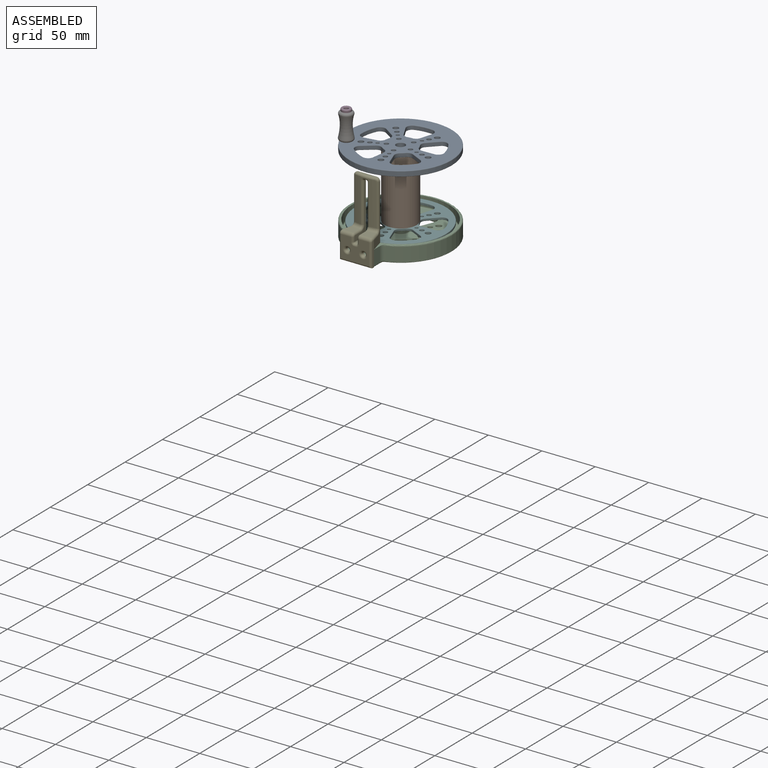
[diagram: assembled view]
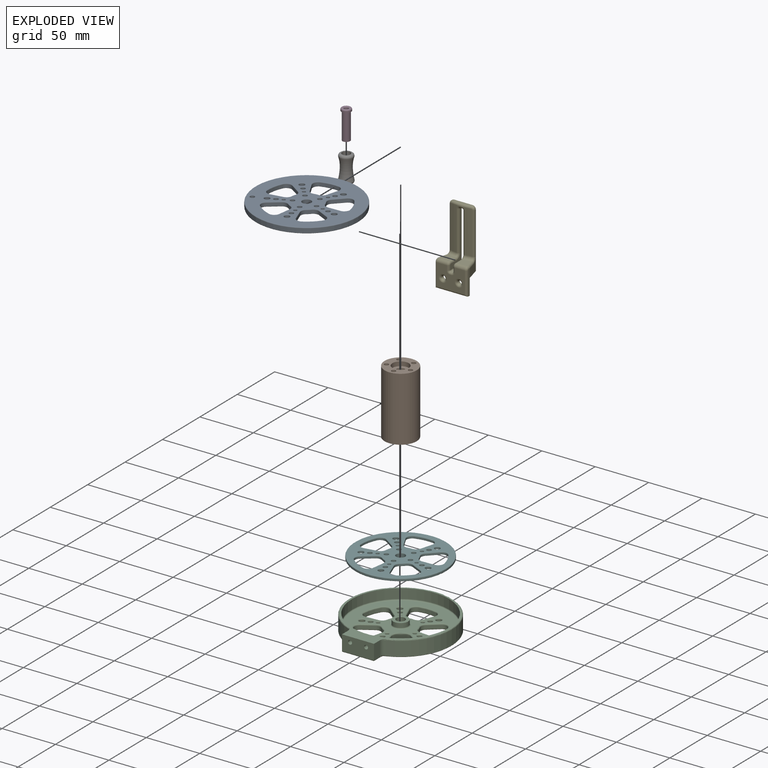
[diagram: exploded view]
GUIDED TOUR — MATED ASSEMBLY (Onshape document 5b718e8cfdb5f7d0afb33d48, AutoMate assembly 5b718e8cfdb5f7d0afb33d48_10eff221aa54d58e2a21d14b_0b6ef1a40faf42d0a8aaf2a6_default)

This assembly has 7 components, labeled P0..P6 below (a component is one placed occurrence of a part; the same part can appear more than once), held together by 14 mates. A mate is a constraint between two components; its type names the relative motion it leaves free:
  CYLINDRICAL — leaves both rotation about and translation along the listed axis free,
  PLANAR — leaves sliding in the plane through the listed point (normal = the listed direction) and rotation about that normal free.
Axis/direction vectors are unit vectors and 'through' points are millimeter coordinates, both in the assembly's world frame.

MATES
  1. PLANAR "Planar 2": P1 <-> P0, direction (0.000, 0.000, 1.000) through (-47.73, -34.65, 64.87) mm
  2. CYLINDRICAL "Cylindrical 8": P3 <-> P0, axis (0.000, 0.000, -1.000) through (-86.60, -51.82, 68.87) mm
  3. PLANAR "Planar 5": P0 <-> P3, direction (0.000, 0.000, 1.000) through (-47.60, -34.60, 68.87) mm
  4. PLANAR "Planar 3": P2 <-> P5, direction (0.000, 0.000, 1.000) through (-47.73, -34.65, 0.87) mm
  5. CYLINDRICAL "Cylindrical 6": P2 <-> P4, axis (0.000, -1.000, 0.000) through (-40.23, -91.65, 1.02) mm
  6. CYLINDRICAL "Cylindrical 9": P3 <-> P6, axis (0.000, 0.000, -1.000) through (-86.60, -51.82, 81.37) mm
  7. PLANAR "Planar 4": P2 <-> P4, direction (0.000, -1.000, 0.000) through (-47.73, -91.65, -1.25) mm
  8. PLANAR "Planar 6": P6 <-> P0, direction (0.000, 0.000, -1.000) through (-86.60, -51.82, 68.87) mm
  9. CYLINDRICAL "Cylindrical 3": P1 <-> P0, axis (0.000, 0.000, 1.000) through (-36.88, -36.99, 64.87) mm
  10. CYLINDRICAL "Cylindrical 4": P1 <-> P0, axis (0.000, 0.000, 1.000) through (-55.13, -26.38, 64.87) mm
  11. CYLINDRICAL "Cylindrical 1": P1 <-> P5, axis (0.000, 0.000, 1.000) through (-57.88, -39.14, 64.87) mm
  12. PLANAR "Planar 1": P5 <-> P1, direction (0.000, 0.000, 1.000) through (-56.59, -46.13, 4.87) mm
  13. CYLINDRICAL "Cylindrical 2": P5 <-> P1, axis (0.000, 0.000, -1.000) through (-36.88, -36.99, 2.97) mm
  14. CYLINDRICAL "Cylindrical 7": P4 <-> P2, axis (0.000, -1.000, 0.000) through (-55.23, -93.65, 1.02) mm

ASSEMBLY ORDER
  1. P3 — the base component [order verified]
  2. P6 [order verified]
  3. P5 [order verified]
  4. P2 [order verified]
  5. P1 [order verified]
  6. P4 [order verified]
  7. P0 [order verified]
(P2 verified with a relaxed clearance tolerance: the source model stores slight part interference there.)
Order-tag legend:
  [order verified] — this step's position reverses a verified removal order: the component was checked to insert without passing through the ones already placed.

Of the 7 components, 1 carries the full construction recipe — the FeatureScript program that regenerates the part's solid from scratch; the rest are supplied as boundary geometry only.
Each toured component is shown spotlighted twice — in the assembled view, then in the exploded view, where a leader line traces a displaced component back to its assembled socket (saturated green if recipe-attached, orange if geometry-only; every other component desaturated gray) — followed by its recipe or geometry summary and the mates that hold it.
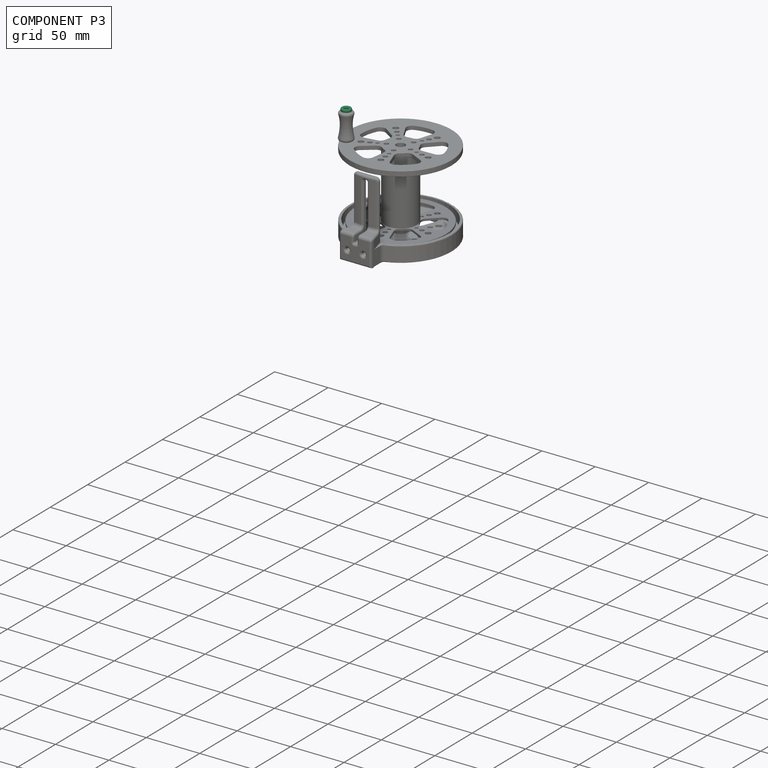
[diagram: component P3 — assembled]
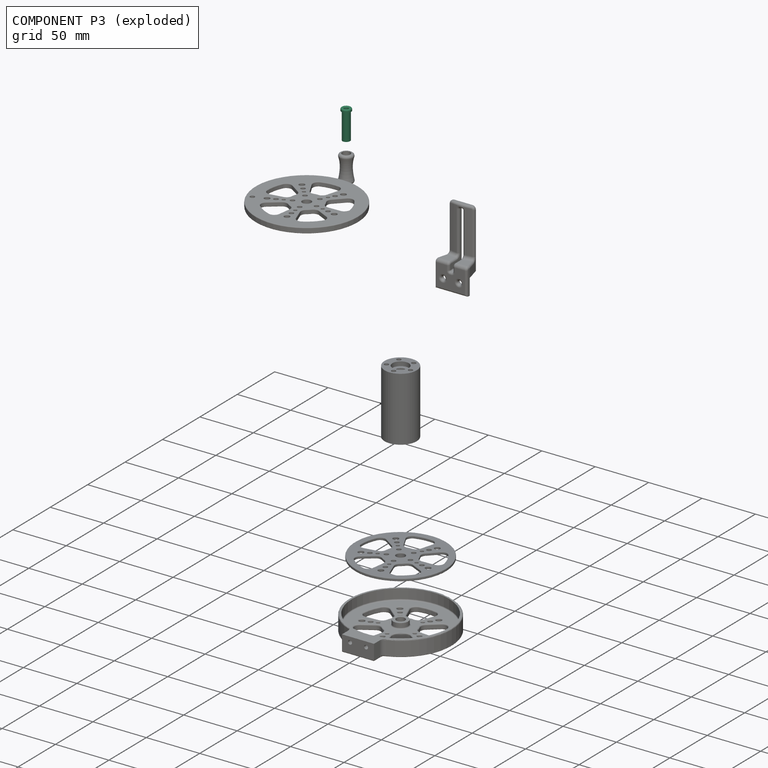
[diagram: component P3 — exploded]
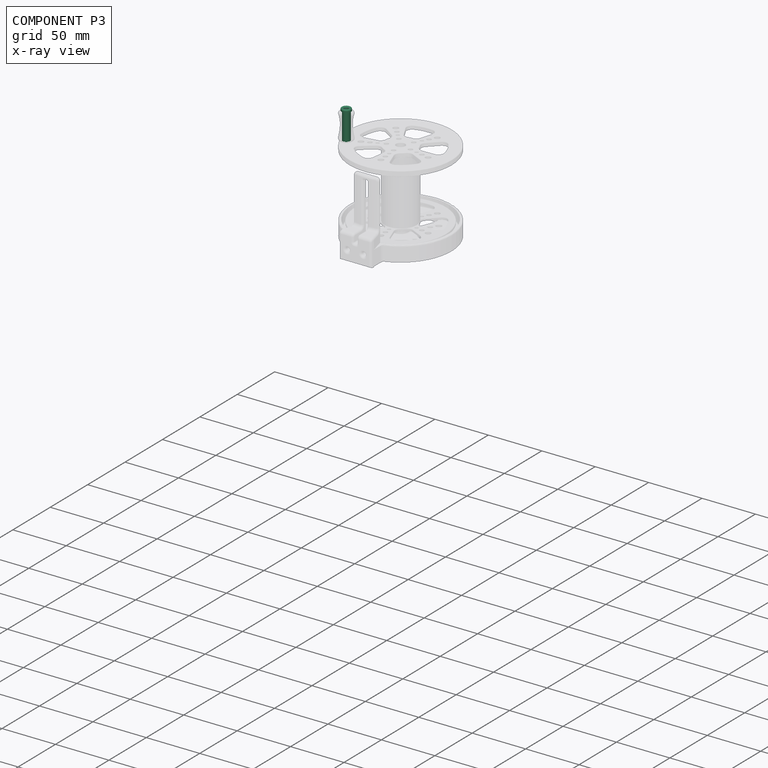
[diagram: component P3 — x-ray view]
COMPONENT P3 — recipe-attached (CADFS 00964111, mesh-verified: the recipe's output STEP matches this component's geometry to below the mesh-comparison resolution (tessellation chordal tolerance ~0.0453 mm)).
Held by: CYLINDRICAL mate "Cylindrical 8" to P0; PLANAR mate "Planar 5" to P0; CYLINDRICAL mate "Cylindrical 9" to P6.
Construction recipe (FeatureScript — the CAD program that rebuilds this solid; sketch coordinates are in the units given by the * unit suffixes, e.g. mm):

FeatureScript 1511;
import(path : "onshape/std/geometry.fs", version : "1511.0");
import(path : "onshape/std/common.fs", version : "1511.0");
const mm = millimeter;
const VERTEX = EntityType.VERTEX;
const EDGE = EntityType.EDGE;
const FACE = EntityType.FACE;
const BODY = EntityType.BODY;
function v(x, y){return vector(x, y);}
function OD(order){return orderDisambiguation(order);}
function OSD(set){return originalSetDisambiguation(set);}
function TD(topology){return topologyDisambiguation(topology);}
function TDD(query){return trueDependencyDisambiguation(query);}
function sQuery(a, b, c) {return sketchEntityQuery(a, b, c);}

annotation { "Feature Type Name" : "Feature", "Feature Type Description" : "" }
export const myFeature = defineFeature(function(context is Context, id is Id, definition is map)
    precondition{}
    {
        {
            var Q0;
            Q0=qCreatedBy(makeId("Top.planeOp"),FACE);
            var sketch = newSketch(context, id + "F0", { "sketchPlane" : qUnion([Q0])});
            skLineSegment(sketch, "E0", {"start": v(2, 0) * mm, "end": v(2, 27.4) * mm});
            skLineSegment(sketch, "E1", {"start": v(2, 27.4) * mm, "end": v(4.5, 27.4) * mm});
            skLineSegment(sketch, "E2", {"start": v(4.5, 27.4) * mm, "end": v(4.5, 25) * mm});
            skLineSegment(sketch, "E3", {"start": v(4.5, 25) * mm, "end": v(3.5, 25) * mm});
            skLineSegment(sketch, "E4", {"start": v(3.5, 25) * mm, "end": v(3.5, 0) * mm});
            skLineSegment(sketch, "E5", {"start": v(3.5, 0) * mm, "end": v(2, 0) * mm});
            skLineSegment(sketch, "E6", {"start": v(0, 0) * mm, "end": v(0, 28) * mm, "construction": true});
            skSolve(sketch);
        }
        {
            var Q0;
            Q0=makeQuery(id+"F0.imprint","IMPRINT",FACE,{"disambiguationData":[TD([[makeQuery(id+"F0.imprint","IMPRINT",EDGE,{"derivedFrom":sQuery(id+"F0.wireOp",EDGE,"E0")}),-1.0]])]});
            var Q1;
            Q1=sQuery(id+"F0.wireOp",EDGE,"E6");
            revolve(context, id + "F1", {"surfaceOperationType" : NewSurfaceOperationType.NEW, "entities" : qUnion([Q0]), "axis" : qUnion([Q1]), "revolveType" : RevolveType.FULL});
        }
        {
            var Q0;
            Q0=makeQuery(id+"F1.opRevolve","SWEPT_FACE",FACE,{"disambiguationData":[OSD([sQuery(id+"F0.wireOp",EDGE,"E1")])]});
            fillet(context, id + "F2", {"entities" : qUnion([Q0]), "radius" : 1 * mm, "allowEdgeOverflow" : false});
        }
    });
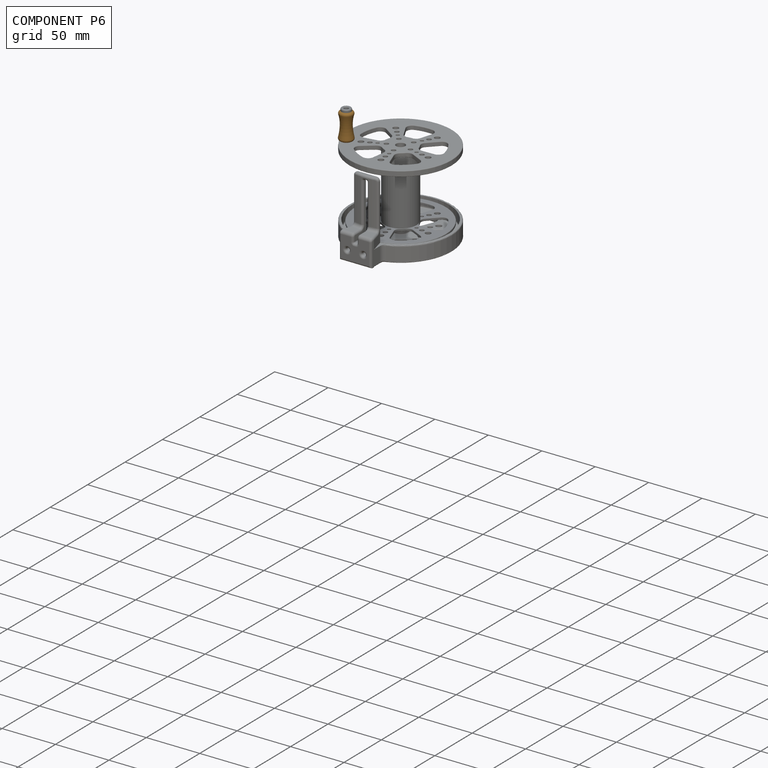
[diagram: component P6 — assembled]
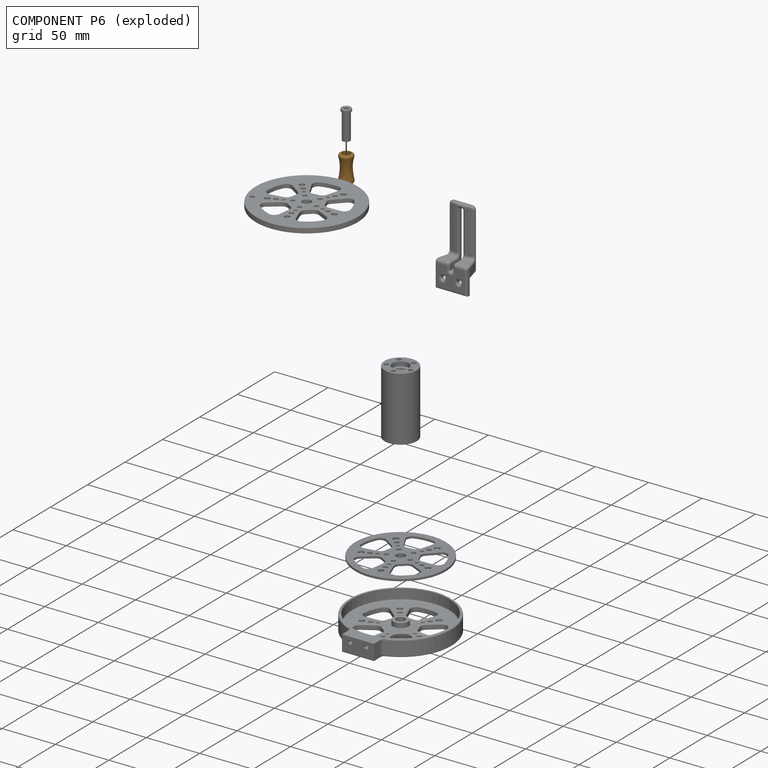
[diagram: component P6 — exploded]
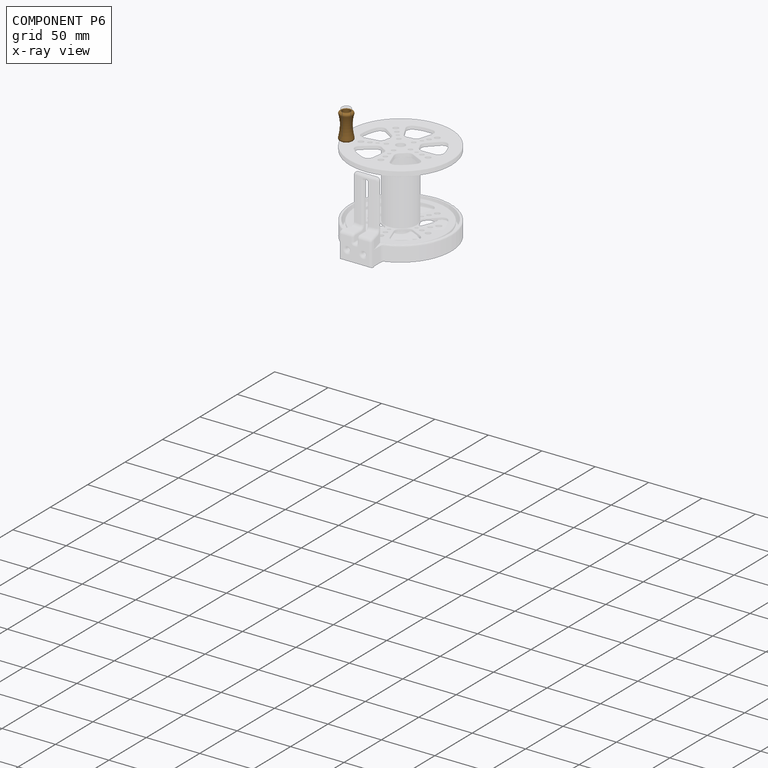
[diagram: component P6 — x-ray view]
COMPONENT P6 — geometry summary (no construction recipe available for this part):
  bounding box: 24.8 x 13.9 x 13.9 mm
  B-rep topology: 1 solid, 6 faces, 22 edges
  volume: 1254 mm^3 (26% of its bounding box)
  symmetry: revolution-symmetric about the y axis through its bounding-box center; mirror-symmetric across its x mid-plane, z mid-plane
Held by: CYLINDRICAL mate "Cylindrical 9" to P3; PLANAR mate "Planar 6" to P0.
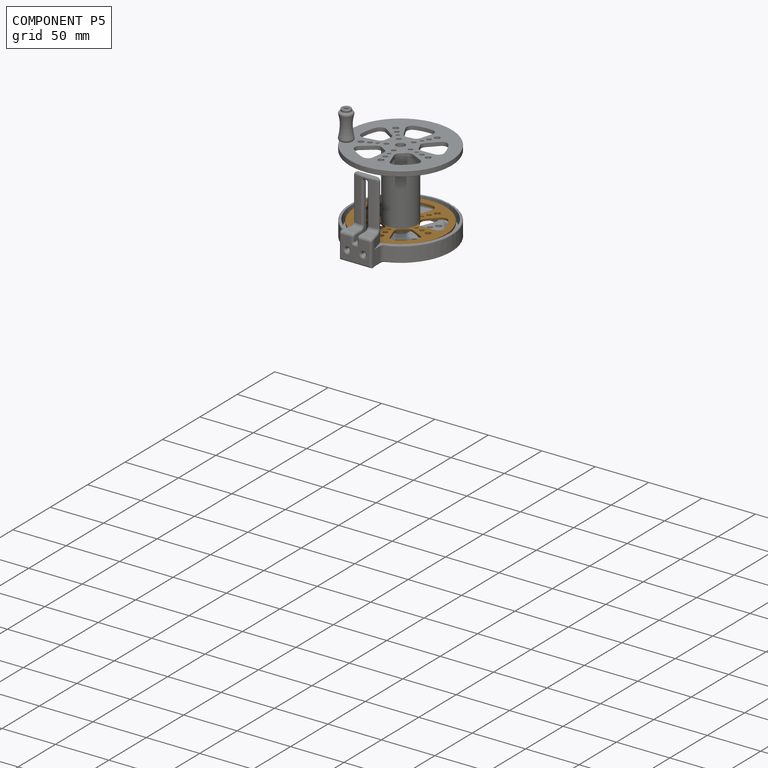
[diagram: component P5 — assembled]
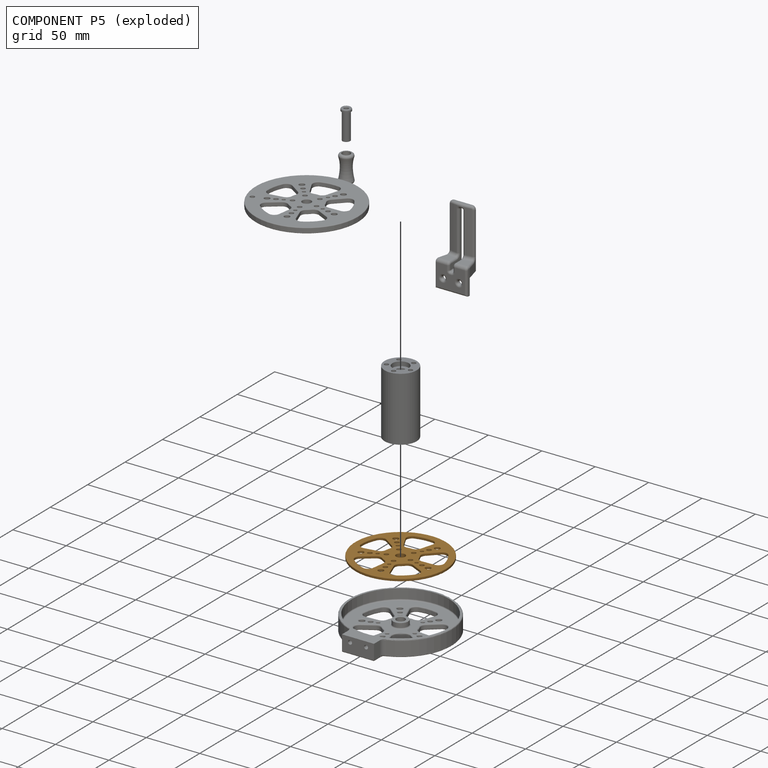
[diagram: component P5 — exploded]
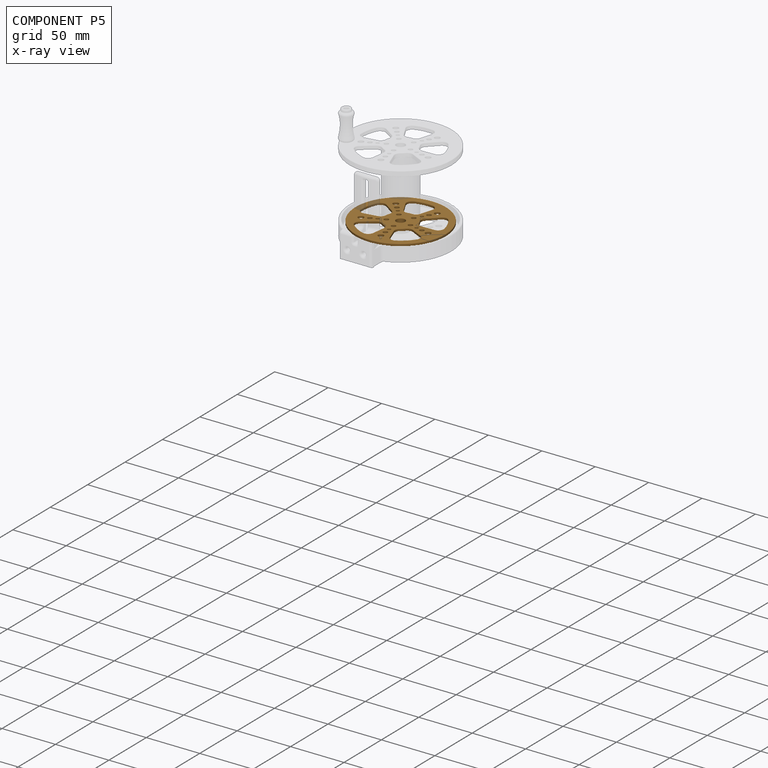
[diagram: component P5 — x-ray view]
COMPONENT P5 — geometry summary (no construction recipe available for this part):
  bounding box: 92.0 x 92.0 x 4.0 mm
  B-rep topology: 1 solid, 190 faces, 874 edges
  volume: 8081 mm^3 (24% of its bounding box)
  symmetry: mirror-symmetric across its x mid-plane
Held by: PLANAR mate "Planar 3" to P2; CYLINDRICAL mate "Cylindrical 1" to P1; PLANAR mate "Planar 1" to P1; CYLINDRICAL mate "Cylindrical 2" to P1.
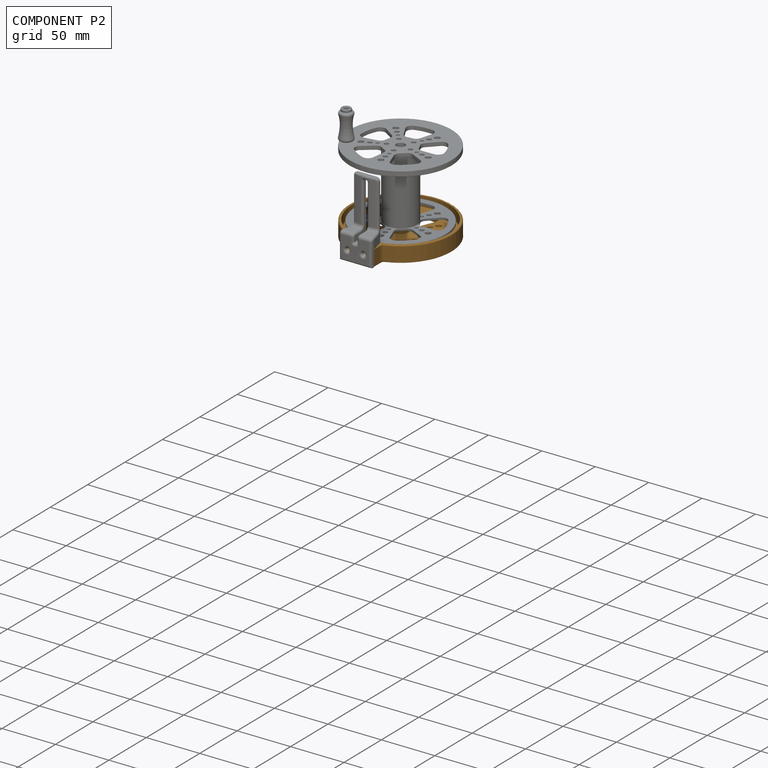
[diagram: component P2 — assembled]
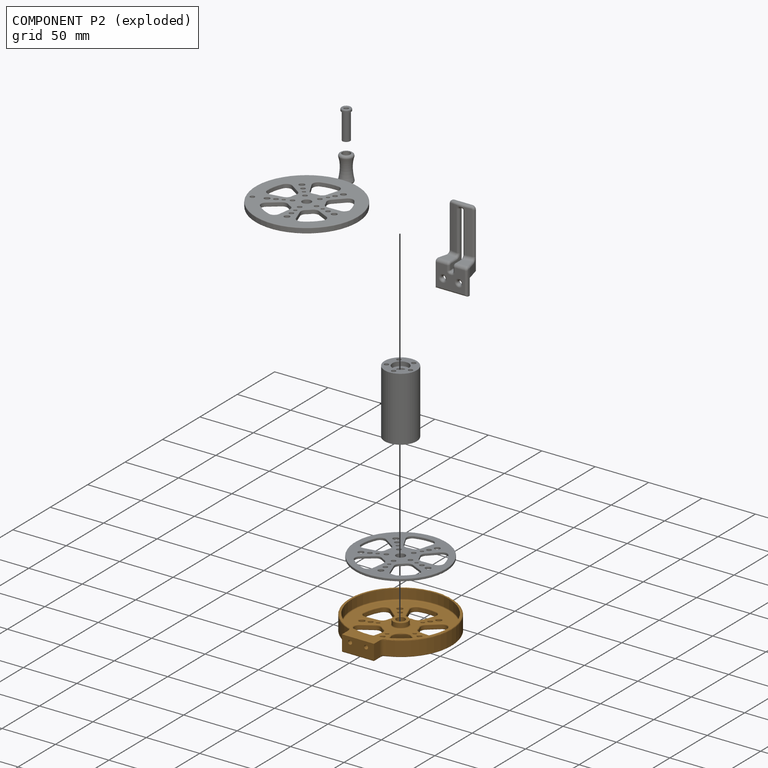
[diagram: component P2 — exploded]
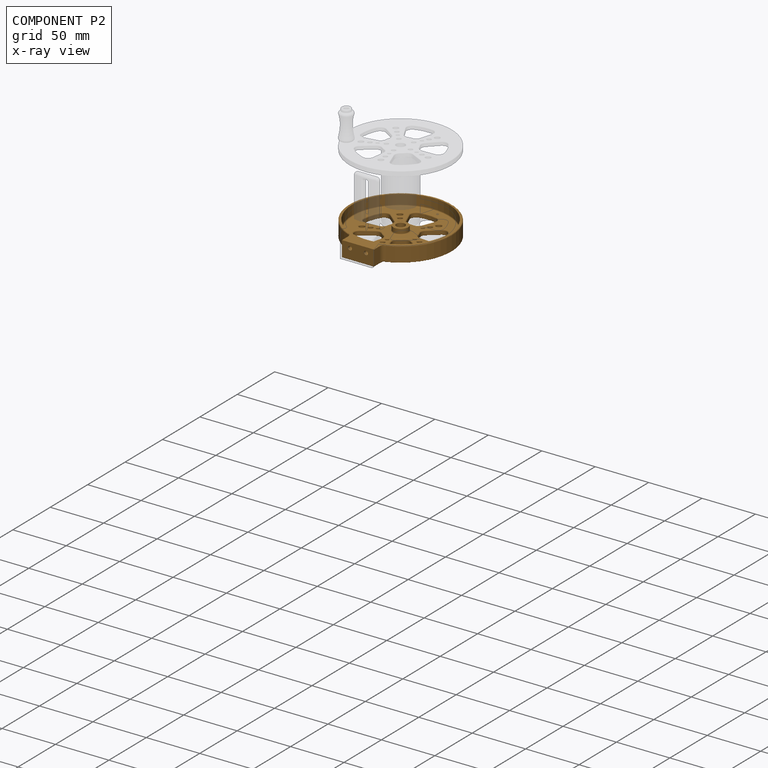
[diagram: component P2 — x-ray view]
COMPONENT P2 — geometry summary (no construction recipe available for this part):
  bounding box: 108.8 x 103.7 x 20.0 mm
  B-rep topology: 1 solid, 196 faces, 912 edges
  volume: 36302 mm^3 (16% of its bounding box)
  symmetry: mirror-symmetric across its x mid-plane
Held by: PLANAR mate "Planar 3" to P5; CYLINDRICAL mate "Cylindrical 6" to P4; PLANAR mate "Planar 4" to P4; CYLINDRICAL mate "Cylindrical 7" to P4.
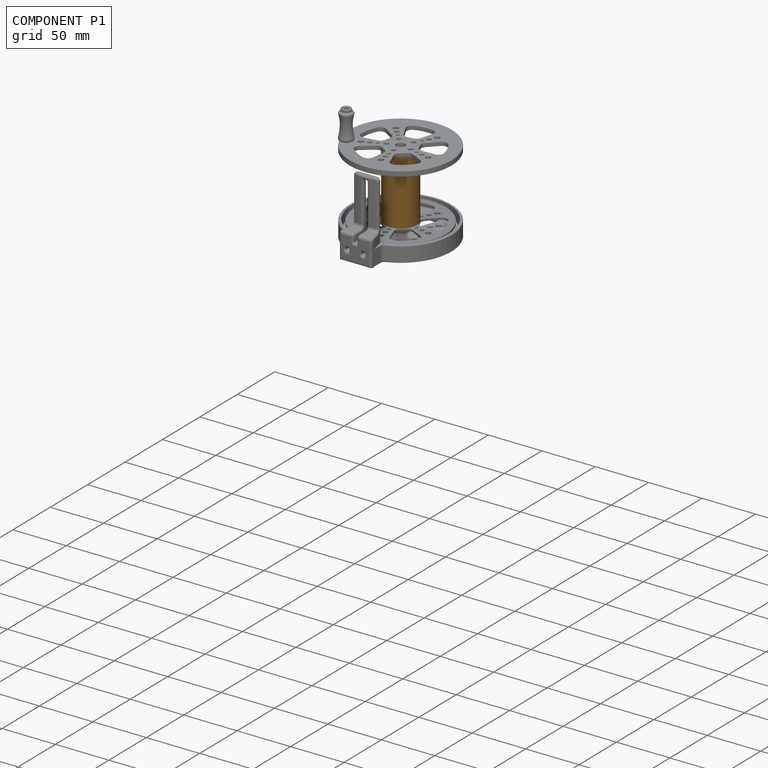
[diagram: component P1 — assembled]
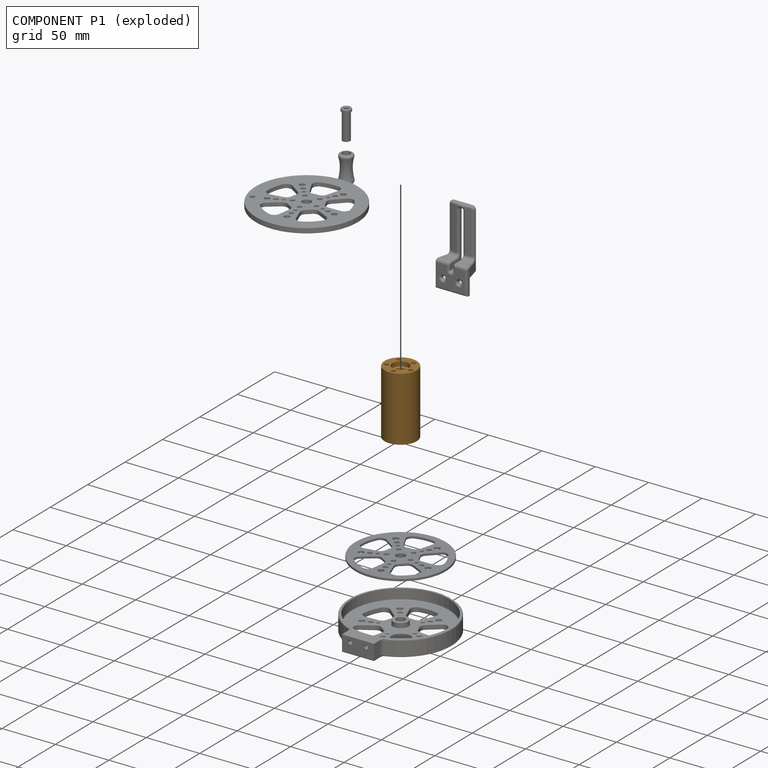
[diagram: component P1 — exploded]
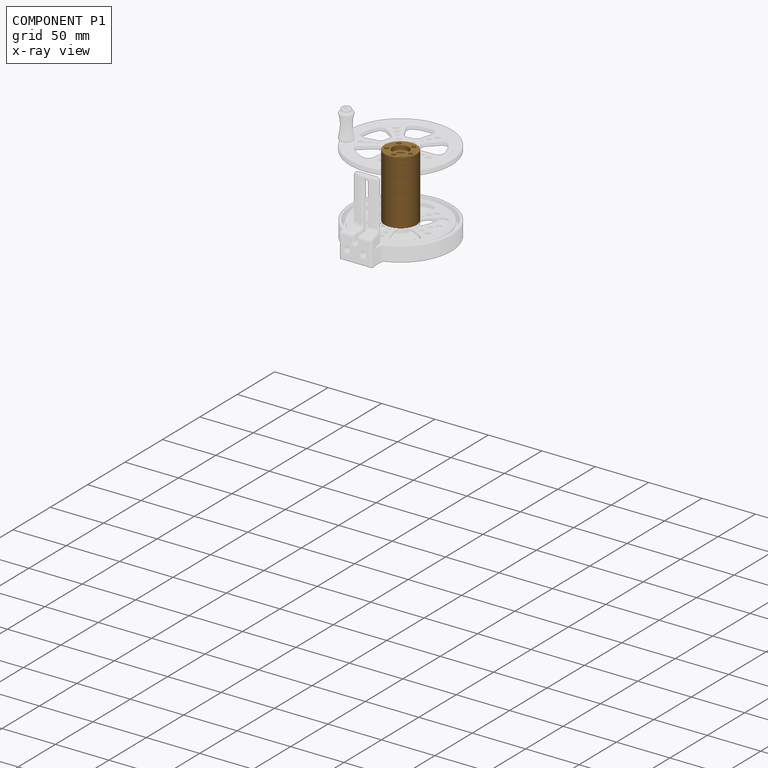
[diagram: component P1 — x-ray view]
COMPONENT P1 — geometry summary (no construction recipe available for this part):
  bounding box: 60.0 x 30.0 x 30.0 mm
  B-rep topology: 1 solid, 13 faces, 54 edges
  volume: 34425 mm^3 (64% of its bounding box)
  symmetry: 2-fold rotationally symmetric about the y axis; mirror-symmetric across its x mid-plane, z mid-plane
Held by: PLANAR mate "Planar 2" to P0; CYLINDRICAL mate "Cylindrical 3" to P0; CYLINDRICAL mate "Cylindrical 4" to P0; CYLINDRICAL mate "Cylindrical 1" to P5; PLANAR mate "Planar 1" to P5; CYLINDRICAL mate "Cylindrical 2" to P5.
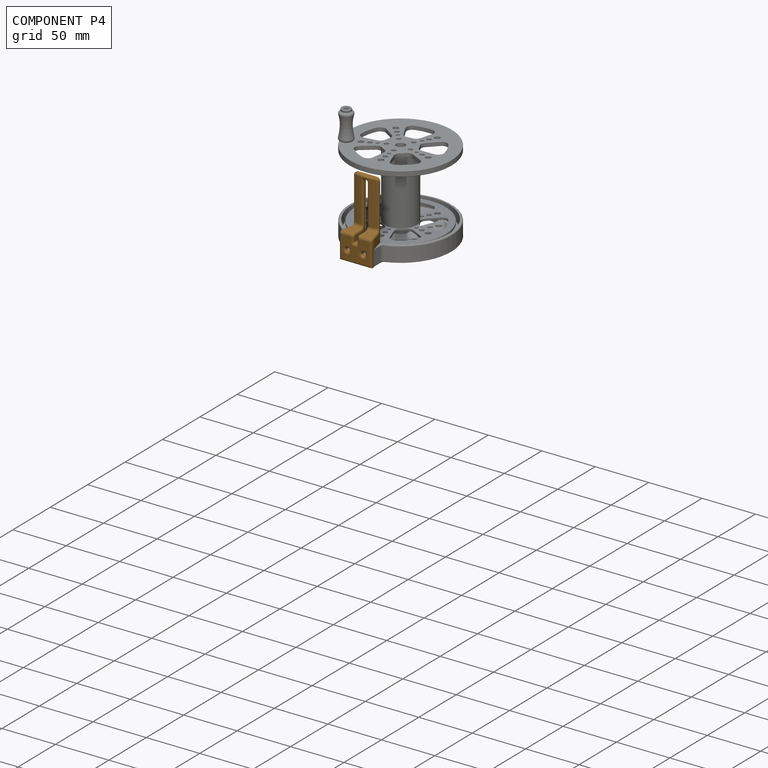
[diagram: component P4 — assembled]
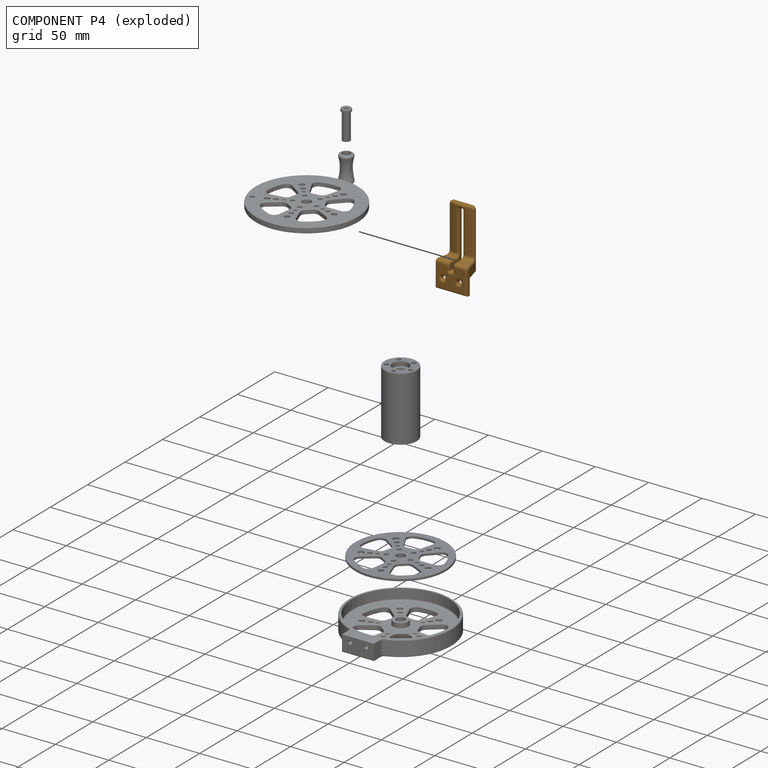
[diagram: component P4 — exploded]
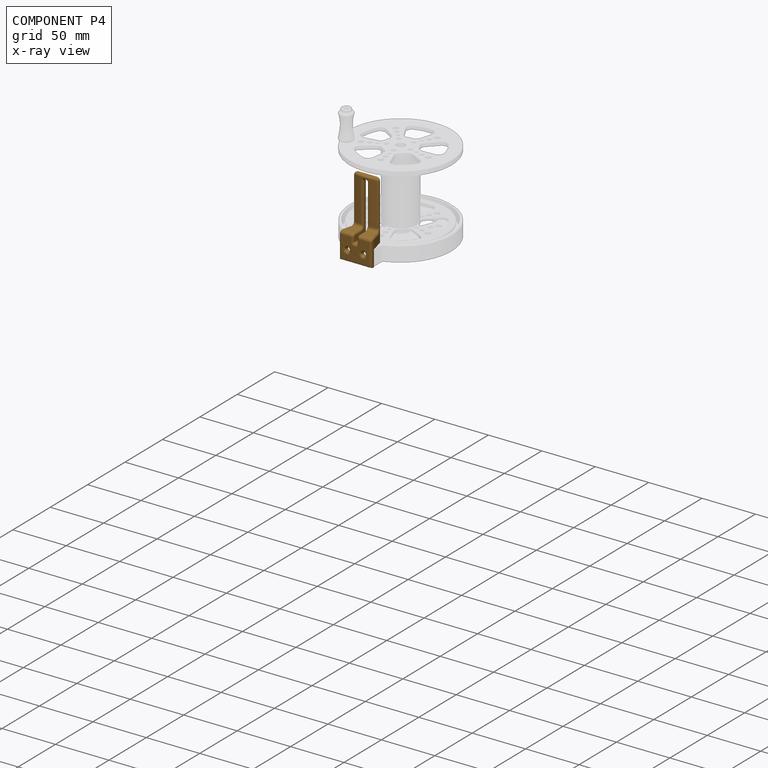
[diagram: component P4 — x-ray view]
COMPONENT P4 — geometry summary (no construction recipe available for this part):
  bounding box: 70.0 x 30.0 x 17.7 mm
  B-rep topology: 1 solid, 63 faces, 304 edges
  volume: 8630 mm^3 (23% of its bounding box)
  symmetry: mirror-symmetric across its x mid-plane
Held by: CYLINDRICAL mate "Cylindrical 6" to P2; PLANAR mate "Planar 4" to P2; CYLINDRICAL mate "Cylindrical 7" to P2.
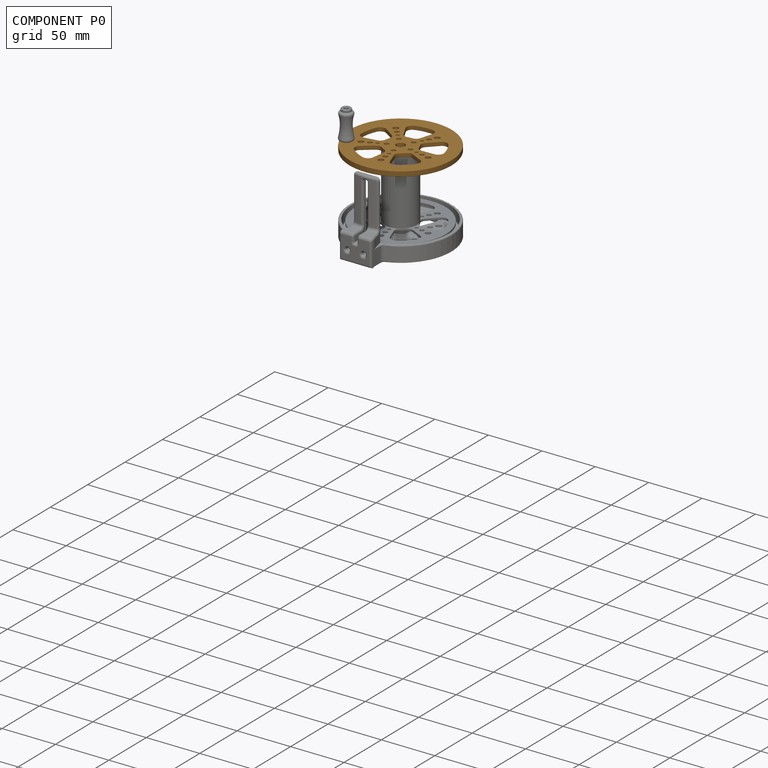
[diagram: component P0 — assembled]
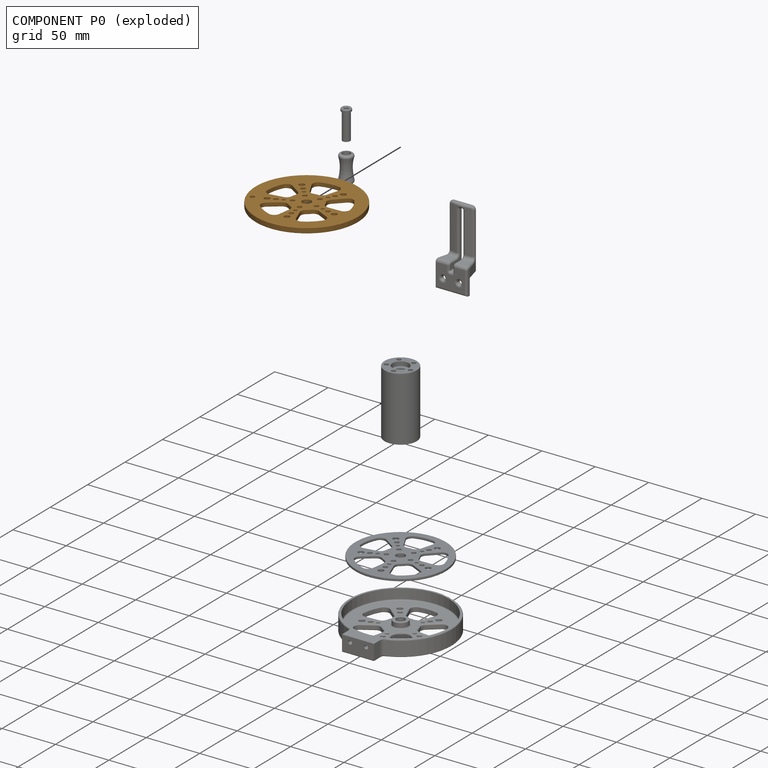
[diagram: component P0 — exploded]
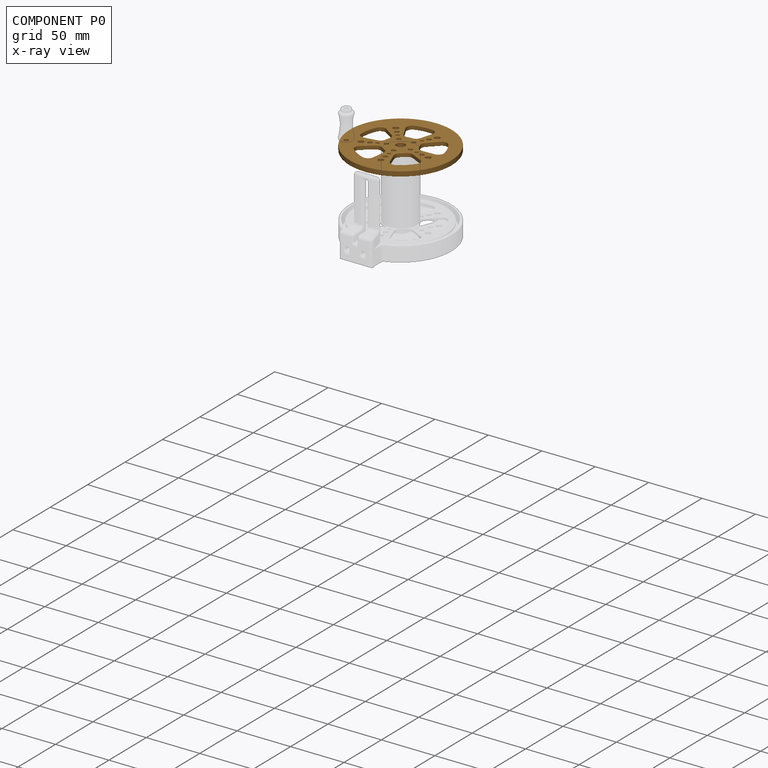
[diagram: component P0 — x-ray view]
COMPONENT P0 — geometry summary (no construction recipe available for this part):
  bounding box: 103.7 x 103.7 x 5.0 mm
  B-rep topology: 1 solid, 194 faces, 892 edges
  volume: 20144 mm^3 (37% of its bounding box)
Held by: PLANAR mate "Planar 2" to P1; CYLINDRICAL mate "Cylindrical 8" to P3; PLANAR mate "Planar 5" to P3; PLANAR mate "Planar 6" to P6; CYLINDRICAL mate "Cylindrical 3" to P1; CYLINDRICAL mate "Cylindrical 4" to P1.
PROVENANCE & LICENSES
Assembly (occurrences, transforms, mates, per-part STEP geometry): AutoMate dataset, Zenodo record 7776208, CC0.
Construction recipes: CADFS (HuggingFace VladPyatov/CADFS, CC-BY-4.0, layered over the ABC dataset), FeatureScript reconstruction programs keyed by ABC model id.
Join: ABC meta listings map ABC model id -> Onshape documentId; within a shared document, parts are matched by geometric signature (bounding-box dims + volume at 0.1% relative tolerance, exact B-rep face/solid counts).
Verification: 1 of this assembly's 7 components carries a recipe attachment, and every attachment is mesh-verified: the CADFS STEP and the AutoMate member STEP were compared as meshes in their shared local frame (symmetric sampled-point-to-mesh distance); worst across the 1 attachment: below the mesh-comparison resolution (tessellation chordal tolerance ~0.0453 mm) on a 30 mm part.
Renders: orthographic iso camera (az 35 / el 25); the floor grid conveys scale (grid pitch printed in each image; no ruler). In the exploded view each component is displaced by its stored offset vector: the offsets alone carry the explosion direction (mate normal/axis signs are not orientation cues and do not encode it), and separation distances are assigned per mate-chain, not proportionally to assembly-order depth.
